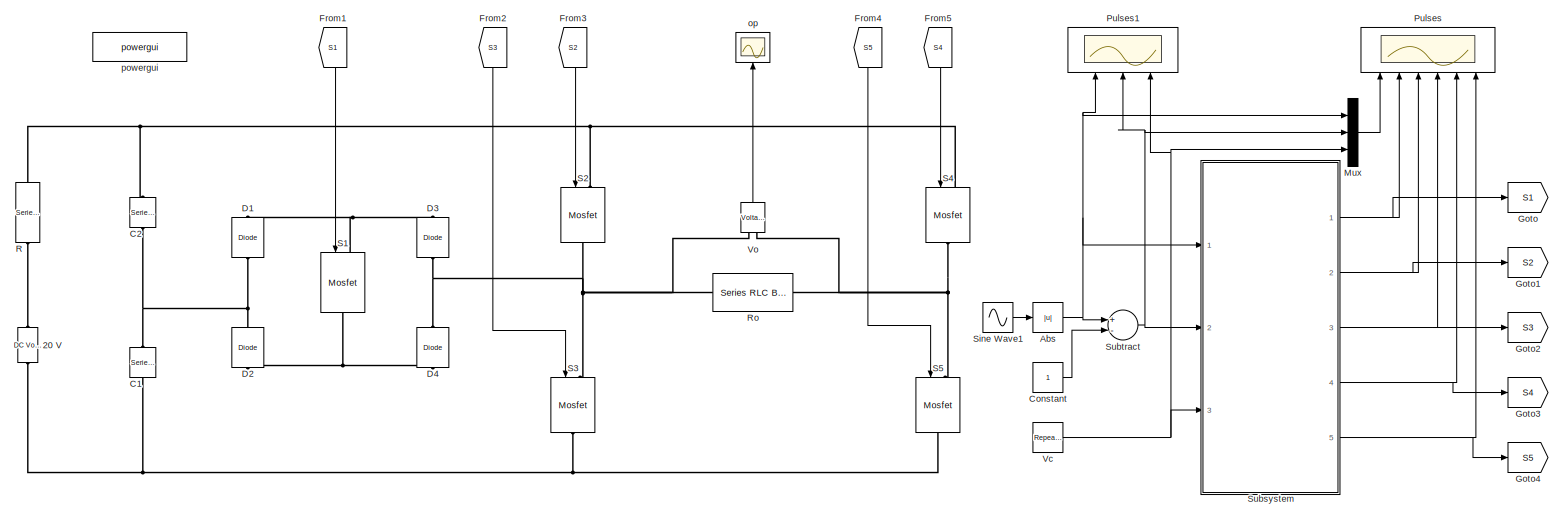
[diagram: root canvas - part 1/1, most of the canvas]
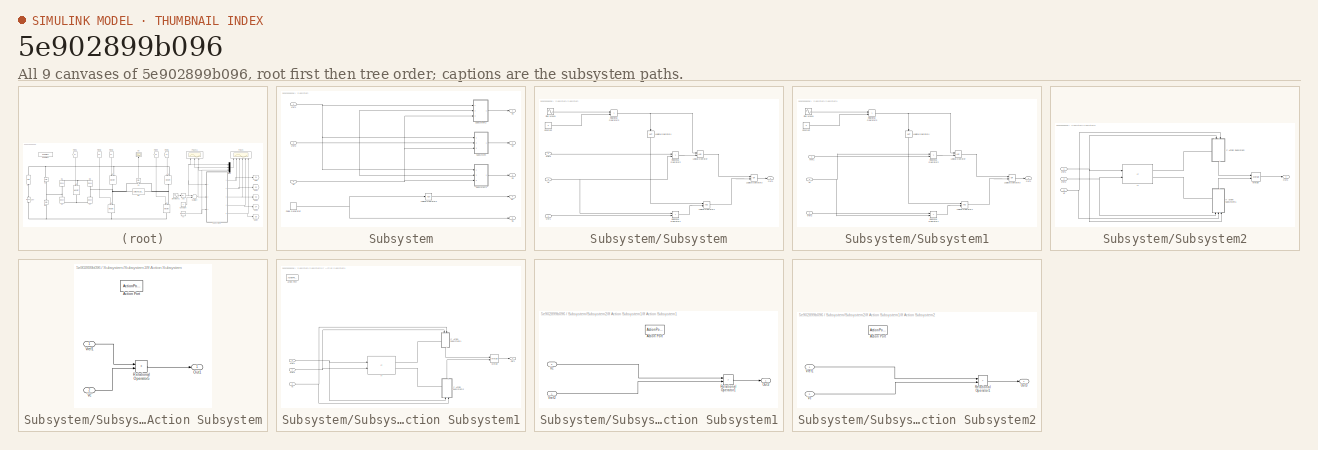
[diagram: thumbnail index - all 9 canvases of the model, root first then tree order]
MODEL slx_5e902899b096
KIND model
CONFIG AbsTol = auto
CONFIG EnableMultiTasking = off
CONFIG FixedStep = 1e-6
CONFIG MaxStep = 1e-4
CONFIG MinStep = auto
CONFIG RelTol = 1e-3
CONFIG SampleTimeConstraint = Unconstrained
CONFIG Solver = ode23tb
CONFIG SolverName = ode23tb
CONFIG StartTime = 0.0
CONFIG StopTime = .2
BLOCK [Reference] 20 V  REF=powerlib/Electrical
Sources/DC Voltage Source
  Ports = [0, 0, 0, 0, 0, 1, 1]
  SourceBlock = powerlib/Electrical\nSources/DC Voltage Source
  SourceProductBaseCode = PS
  SourceProductName = Simscape Power Systems
  SourceType = DC Voltage Source
BLOCK [Abs] Abs
  SaturateOnIntegerOverflow = off
BLOCK [Reference] C1  REF=powerlib/Elements/Series RLC Branch
  Ports = [0, 0, 0, 0, 0, 1, 1]
  SourceBlock = powerlib/Elements/Series RLC Branch
  SourceProductBaseCode = PS
  SourceProductName = Simscape Power Systems
  SourceType = Series RLC Branch
BLOCK [Reference] C2  REF=powerlib/Elements/Series RLC Branch
  Ports = [0, 0, 0, 0, 0, 1, 1]
  SourceBlock = powerlib/Elements/Series RLC Branch
  SourceProductBaseCode = PS
  SourceProductName = Simscape Power Systems
  SourceType = Series RLC Branch
BLOCK [Constant] Constant
BLOCK [Reference] D1  REF=powerlib/Power
Electronics/Diode
  Ports = [0, 0, 0, 0, 0, 1, 1]
  SourceBlock = powerlib/Power\nElectronics/Diode
  SourceProductBaseCode = PS
  SourceProductName = Simscape Power Systems
  SourceType = Diode
BLOCK [Reference] D2  REF=powerlib/Power
Electronics/Diode
  Ports = [0, 0, 0, 0, 0, 1, 1]
  SourceBlock = powerlib/Power\nElectronics/Diode
  SourceProductBaseCode = PS
  SourceProductName = Simscape Power Systems
  SourceType = Diode
BLOCK [Reference] D3  REF=powerlib/Power
Electronics/Diode
  Ports = [0, 0, 0, 0, 0, 1, 1]
  SourceBlock = powerlib/Power\nElectronics/Diode
  SourceProductBaseCode = PS
  SourceProductName = Simscape Power Systems
  SourceType = Diode
BLOCK [Reference] D4  REF=powerlib/Power
Electronics/Diode
  Ports = [0, 0, 0, 0, 0, 1, 1]
  SourceBlock = powerlib/Power\nElectronics/Diode
  SourceProductBaseCode = PS
  SourceProductName = Simscape Power Systems
  SourceType = Diode
BLOCK [From] From1
  GotoTag = S1
BLOCK [From] From2
  GotoTag = S3
BLOCK [From] From3
  GotoTag = S2
BLOCK [From] From4
  GotoTag = S5
BLOCK [From] From5
  GotoTag = S4
BLOCK [Goto] Goto
  GotoTag = S1
BLOCK [Goto] Goto1
  GotoTag = S2
BLOCK [Goto] Goto2
  GotoTag = S3
BLOCK [Goto] Goto3
  GotoTag = S4
BLOCK [Goto] Goto4
  GotoTag = S5
BLOCK [Mux] Mux
  DisplayOption = bar
  Inputs = 3
  Ports = [3, 1]
BLOCK [Scope] Pulses
  NumInputPorts = 6
  Ports = [6]
  ScopeSpecificationString = Simulink.scopes.TimeScopeBlockCfg('CurrentConfiguration', extmgr.ConfigurationSet(extmgr.Configuration('Core','General UI',true,'FigureColor',[0.501960784313725 0.501960784313725 0.501960784313725]),extmgr.Configuration('Core','Source UI',true),extmgr.Configuration('Sources','WiredSimulink',true,'DataLoggingSaveFormat','StructureWithTime','DataLoggingDecimation','1','DataLoggingDecimateData',true)...<+6638ch>
BLOCK [Scope] Pulses1
  NumInputPorts = 3
  Ports = [3]
  ScopeSpecificationString = Simulink.scopes.TimeScopeBlockCfg('CurrentConfiguration', extmgr.ConfigurationSet(extmgr.Configuration('Core','General UI',true,'FigureColor',[0.501960784313725 0.501960784313725 0.501960784313725]),extmgr.Configuration('Core','Source UI',true),extmgr.Configuration('Sources','WiredSimulink',true,'DataLoggingSaveFormat','StructureWithTime','DataLoggingDecimation','1','DataLoggingDecimateData',true,...<+2163ch>
BLOCK [Reference] R  REF=powerlib/Elements/Series RLC Branch
  Ports = [0, 0, 0, 0, 0, 1, 1]
  SourceBlock = powerlib/Elements/Series RLC Branch
  SourceProductBaseCode = PS
  SourceProductName = Simscape Power Systems
  SourceType = Series RLC Branch
BLOCK [Reference] Ro  REF=powerlib/Elements/Series RLC Branch
  Ports = [0, 0, 0, 0, 0, 1, 1]
  SourceBlock = powerlib/Elements/Series RLC Branch
  SourceProductBaseCode = PS
  SourceProductName = Simscape Power Systems
  SourceType = Series RLC Branch
BLOCK [Reference] S1  REF=powerlib/Power
Electronics/Mosfet
  Ports = [1, 0, 0, 0, 0, 1, 1]
  SourceBlock = powerlib/Power\nElectronics/Mosfet
  SourceProductBaseCode = PS
  SourceProductName = Simscape Power Systems
  SourceType = Mosfet
BLOCK [Reference] S2  REF=powerlib/Power
Electronics/Mosfet
  Ports = [1, 0, 0, 0, 0, 1, 1]
  SourceBlock = powerlib/Power\nElectronics/Mosfet
  SourceProductBaseCode = PS
  SourceProductName = Simscape Power Systems
  SourceType = Mosfet
BLOCK [Reference] S3  REF=powerlib/Power
Electronics/Mosfet
  Ports = [1, 0, 0, 0, 0, 1, 1]
  SourceBlock = powerlib/Power\nElectronics/Mosfet
  SourceProductBaseCode = PS
  SourceProductName = Simscape Power Systems
  SourceType = Mosfet
BLOCK [Reference] S4  REF=powerlib/Power
Electronics/Mosfet
  Ports = [1, 0, 0, 0, 0, 1, 1]
  SourceBlock = powerlib/Power\nElectronics/Mosfet
  SourceProductBaseCode = PS
  SourceProductName = Simscape Power Systems
  SourceType = Mosfet
BLOCK [Reference] S5  REF=powerlib/Power
Electronics/Mosfet
  Ports = [1, 0, 0, 0, 0, 1, 1]
  SourceBlock = powerlib/Power\nElectronics/Mosfet
  SourceProductBaseCode = PS
  SourceProductName = Simscape Power Systems
  SourceType = Mosfet
BLOCK [Sin] Sine Wave1
  Amplitude = 2.5
  Frequency = 2*pi*50
  Ports = [0, 1]
  SampleTime = 0
  VectorParams1D = off
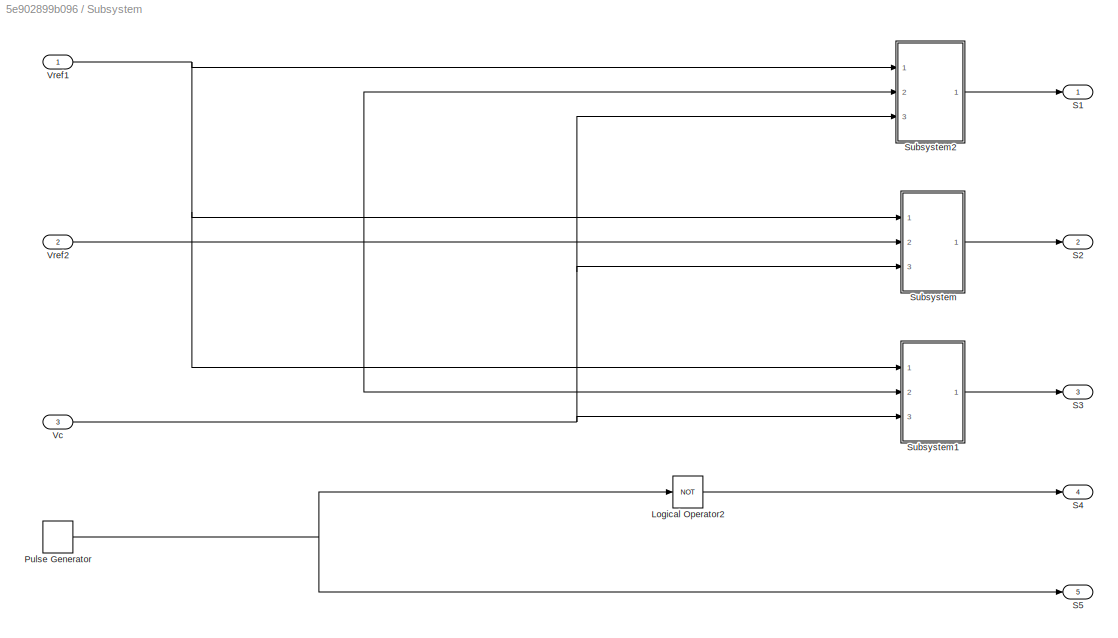
BLOCK [SubSystem] Subsystem
  Ports = [3, 5]
  RequestExecContextInheritance = off
  Variant = off
BLOCK [Logic] Subsystem/Logical Operator2
  AllPortsSameDT = off
  Operator = NOT
  OutDataTypeStr = boolean
  Ports = [1, 1]
BLOCK [DiscretePulseGenerator] Subsystem/Pulse Generator
  Period = .02
  Ports = [0, 1]
  PulseType = Time based
  PulseWidth = 50
BLOCK [Outport] Subsystem/S1
  IconDisplay = Port number
BLOCK [Outport] Subsystem/S2
  IconDisplay = Port number
  Port = 2
BLOCK [Outport] Subsystem/S3
  IconDisplay = Port number
  Port = 3
BLOCK [Outport] Subsystem/S4
  IconDisplay = Port number
  Port = 4
BLOCK [Outport] Subsystem/S5
  IconDisplay = Port number
  Port = 5
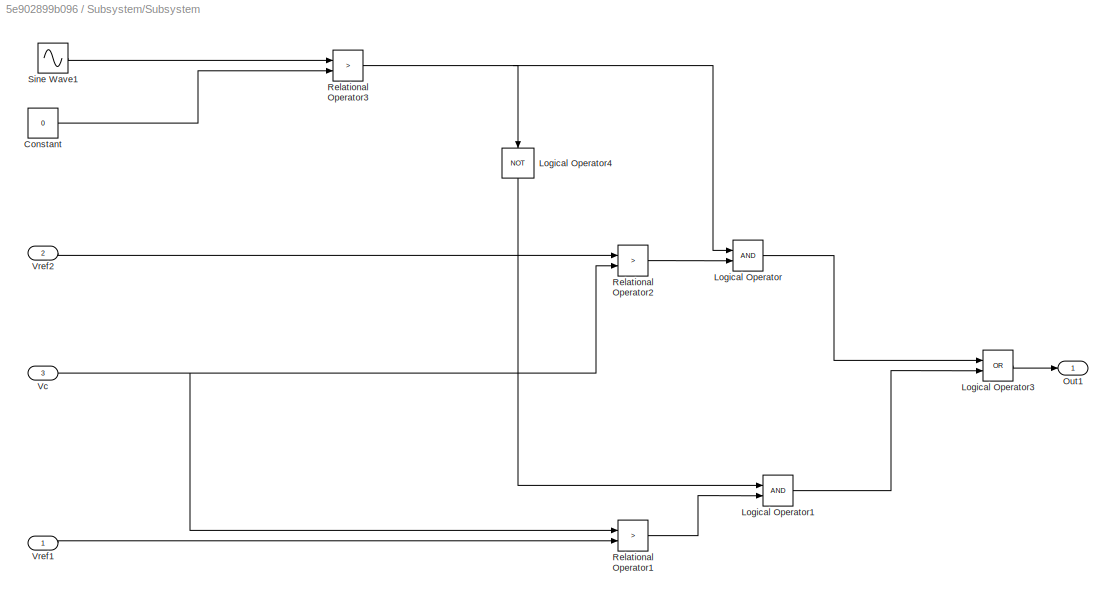
BLOCK [SubSystem] Subsystem/Subsystem
  Ports = [3, 1]
  RequestExecContextInheritance = off
  Variant = off
BLOCK [Constant] Subsystem/Subsystem/Constant
  Value = 0
BLOCK [Logic] Subsystem/Subsystem/Logical Operator
  AllPortsSameDT = off
  OutDataTypeStr = boolean
  Ports = [2, 1]
BLOCK [Logic] Subsystem/Subsystem/Logical Operator1
  AllPortsSameDT = off
  OutDataTypeStr = boolean
  Ports = [2, 1]
BLOCK [Logic] Subsystem/Subsystem/Logical Operator3
  AllPortsSameDT = off
  Operator = OR
  OutDataTypeStr = boolean
  Ports = [2, 1]
BLOCK [Logic] Subsystem/Subsystem/Logical Operator4
  AllPortsSameDT = off
  Operator = NOT
  OutDataTypeStr = boolean
  Ports = [1, 1]
BLOCK [Outport] Subsystem/Subsystem/Out1
  IconDisplay = Port number
BLOCK [RelationalOperator] Subsystem/Subsystem/Relational Operator1
  InputSameDT = off
  Operator = >
  OutDataTypeStr = boolean
  Ports = [2, 1]
BLOCK [RelationalOperator] Subsystem/Subsystem/Relational Operator2
  InputSameDT = off
  Operator = >
  OutDataTypeStr = boolean
  Ports = [2, 1]
BLOCK [RelationalOperator] Subsystem/Subsystem/Relational Operator3
  InputSameDT = off
  Operator = >
  OutDataTypeStr = boolean
  Ports = [2, 1]
BLOCK [Sin] Subsystem/Subsystem/Sine Wave1
  Amplitude = 100
  Frequency = 2*pi*50
  Ports = [0, 1]
  SampleTime = 0
  VectorParams1D = off
BLOCK [Inport] Subsystem/Subsystem/Vc
  IconDisplay = Port number
  Port = 3
BLOCK [Inport] Subsystem/Subsystem/Vref1
  IconDisplay = Port number
BLOCK [Inport] Subsystem/Subsystem/Vref2
  IconDisplay = Port number
  Port = 2
BLOCK [SubSystem] Subsystem/Subsystem1
  Ports = [3, 1]
  RequestExecContextInheritance = off
  Variant = off
BLOCK [Constant] Subsystem/Subsystem1/Constant
  Value = 0
BLOCK [Logic] Subsystem/Subsystem1/Logical Operator
  AllPortsSameDT = off
  OutDataTypeStr = boolean
  Ports = [2, 1]
BLOCK [Logic] Subsystem/Subsystem1/Logical Operator1
  AllPortsSameDT = off
  OutDataTypeStr = boolean
  Ports = [2, 1]
BLOCK [Logic] Subsystem/Subsystem1/Logical Operator3
  AllPortsSameDT = off
  Operator = OR
  OutDataTypeStr = boolean
  Ports = [2, 1]
BLOCK [Logic] Subsystem/Subsystem1/Logical Operator4
  AllPortsSameDT = off
  Operator = NOT
  OutDataTypeStr = boolean
  Ports = [1, 1]
BLOCK [Outport] Subsystem/Subsystem1/Out1
  IconDisplay = Port number
BLOCK [RelationalOperator] Subsystem/Subsystem1/Relational Operator1
  InputSameDT = off
  Operator = >
  OutDataTypeStr = boolean
  Ports = [2, 1]
BLOCK [RelationalOperator] Subsystem/Subsystem1/Relational Operator2
  InputSameDT = off
  Operator = >
  OutDataTypeStr = boolean
  Ports = [2, 1]
BLOCK [RelationalOperator] Subsystem/Subsystem1/Relational Operator3
  InputSameDT = off
  Operator = >
  OutDataTypeStr = boolean
  Ports = [2, 1]
BLOCK [Sin] Subsystem/Subsystem1/Sine Wave1
  Amplitude = 100
  Frequency = 2*pi*50
  Ports = [0, 1]
  SampleTime = 0
  VectorParams1D = off
BLOCK [Inport] Subsystem/Subsystem1/Vc
  IconDisplay = Port number
  Port = 3
BLOCK [Inport] Subsystem/Subsystem1/Vref1
  IconDisplay = Port number
BLOCK [Inport] Subsystem/Subsystem1/Vref2
  IconDisplay = Port number
  Port = 2
BLOCK [SubSystem] Subsystem/Subsystem2
  Ports = [3, 1]
  RequestExecContextInheritance = off
  Variant = off
BLOCK [If] Subsystem/Subsystem2/If
  IfExpression = u1 < 75 & u2 < 0
  NumInputs = 2
  Ports = [2, 2]
BLOCK [SubSystem] Subsystem/Subsystem2/If Action Subsystem
  Ports = [2, 1, 0, 0, 0, 0, 0, 1]
  RequestExecContextInheritance = off
  TreatAsAtomicUnit = on
  Variant = off
BLOCK [ActionPort] Subsystem/Subsystem2/If Action Subsystem/Action Port
  ActionType = then
BLOCK [Outport] Subsystem/Subsystem2/If Action Subsystem/Out1
  IconDisplay = Port number
BLOCK [RelationalOperator] Subsystem/Subsystem2/If Action Subsystem/Relational Operator5
  InputSameDT = off
  Operator = >
  OutDataTypeStr = boolean
  Ports = [2, 1]
BLOCK [Inport] Subsystem/Subsystem2/If Action Subsystem/Vc
  IconDisplay = Port number
  Port = 2
BLOCK [Inport] Subsystem/Subsystem2/If Action Subsystem/Vref1
  IconDisplay = Port number
BLOCK [SubSystem] Subsystem/Subsystem2/If Action Subsystem1
  Ports = [3, 1, 0, 0, 0, 0, 0, 1]
  RequestExecContextInheritance = off
  TreatAsAtomicUnit = on
  Variant = off
BLOCK [ActionPort] Subsystem/Subsystem2/If Action Subsystem1/Action Port
  ActionType = else
BLOCK [If] Subsystem/Subsystem2/If Action Subsystem1/If
  IfExpression = u2 > 0
  NumInputs = 2
  Ports = [2, 2]
BLOCK [SubSystem] Subsystem/Subsystem2/If Action Subsystem1/If Action Subsystem1
  Ports = [2, 1, 0, 0, 0, 0, 0, 1]
  RequestExecContextInheritance = off
  TreatAsAtomicUnit = on
  Variant = off
BLOCK [ActionPort] Subsystem/Subsystem2/If Action Subsystem1/If Action Subsystem1/Action Port
  ActionType = then
BLOCK [Outport] Subsystem/Subsystem2/If Action Subsystem1/If Action Subsystem1/Out3
  IconDisplay = Port number
BLOCK [RelationalOperator] Subsystem/Subsystem2/If Action Subsystem1/If Action Subsystem1/Relational Operator1
  InputSameDT = off
  Operator = >
  OutDataTypeStr = boolean
  Ports = [2, 1]
BLOCK [Inport] Subsystem/Subsystem2/If Action Subsystem1/If Action Subsystem1/Vc
  IconDisplay = Port number
  Port = 2
BLOCK [Inport] Subsystem/Subsystem2/If Action Subsystem1/If Action Subsystem1/Vref2
  IconDisplay = Port number
BLOCK [SubSystem] Subsystem/Subsystem2/If Action Subsystem1/If Action Subsystem2
  Ports = [2, 1, 0, 0, 0, 0, 0, 1]
  RequestExecContextInheritance = off
  TreatAsAtomicUnit = on
  Variant = off
BLOCK [ActionPort] Subsystem/Subsystem2/If Action Subsystem1/If Action Subsystem2/Action Port
  ActionType = else
BLOCK [Outport] Subsystem/Subsystem2/If Action Subsystem1/If Action Subsystem2/Out3
  IconDisplay = Port number
BLOCK [RelationalOperator] Subsystem/Subsystem2/If Action Subsystem1/If Action Subsystem2/Relational Operator1
  InputSameDT = off
  Operator = >
  OutDataTypeStr = boolean
  Ports = [2, 1]
BLOCK [Inport] Subsystem/Subsystem2/If Action Subsystem1/If Action Subsystem2/Vc
  IconDisplay = Port number
  Port = 2
BLOCK [Inport] Subsystem/Subsystem2/If Action Subsystem1/If Action Subsystem2/Vref1
  IconDisplay = Port number
BLOCK [Merge] Subsystem/Subsystem2/If Action Subsystem1/Merge
  Ports = [2, 1]
BLOCK [Outport] Subsystem/Subsystem2/If Action Subsystem1/Out1
  IconDisplay = Port number
BLOCK [Inport] Subsystem/Subsystem2/If Action Subsystem1/Vc
  IconDisplay = Port number
  Port = 2
BLOCK [Inport] Subsystem/Subsystem2/If Action Subsystem1/Vref1
  IconDisplay = Port number
  Port = 3
BLOCK [Inport] Subsystem/Subsystem2/If Action Subsystem1/Vref2
  IconDisplay = Port number
BLOCK [Merge] Subsystem/Subsystem2/Merge
  Ports = [2, 1]
BLOCK [Outport] Subsystem/Subsystem2/Out1
  IconDisplay = Port number
BLOCK [Inport] Subsystem/Subsystem2/Vc
  IconDisplay = Port number
  Port = 3
BLOCK [Inport] Subsystem/Subsystem2/Vref1
  IconDisplay = Port number
BLOCK [Inport] Subsystem/Subsystem2/Vref2
  IconDisplay = Port number
  Port = 2
BLOCK [Inport] Subsystem/Vc
  IconDisplay = Port number
  Port = 3
BLOCK [Inport] Subsystem/Vref1
  IconDisplay = Port number
BLOCK [Inport] Subsystem/Vref2
  IconDisplay = Port number
  Port = 2
BLOCK [Sum] Subtract
  InputSameDT = off
  Inputs = +-
  OutDataTypeStr = Inherit: Inherit via internal rule
  Ports = [2, 1]
  SaturateOnIntegerOverflow = off
BLOCK [Reference] Vc  REF=simulink/Sources/Repeating
Sequence
  Ports = [0, 1]
  SourceBlock = simulink/Sources/Repeating\nSequence
  SourceProductBaseCode = SL
  SourceProductName = Simulink
  SourceType = Repeating table
BLOCK [Reference] Vo  REF=powerlib/Measurements/Voltage Measurement
  Ports = [0, 1, 0, 0, 0, 2]
  SourceBlock = powerlib/Measurements/Voltage Measurement
  SourceProductBaseCode = PS
  SourceProductName = Simscape Power Systems
  SourceType = Voltage Measurement
BLOCK [Scope] op
  NumInputPorts = 1
  Ports = [1]
  ScopeSpecificationString = Simulink.scopes.TimeScopeBlockCfg('CurrentConfiguration', extmgr.ConfigurationSet(extmgr.Configuration('Core','General UI',true,'FigureColor',[1 1 1]),extmgr.Configuration('Core','Source UI',true),extmgr.Configuration('Sources','WiredSimulink',true,'DataLogging',true,'DataLoggingVariableName','outputVoltage','DataLoggingDecimation','1','DataLoggingDecimateData',true),extmgr.Configuration('Visuals'...<+2815ch>
BLOCK [Reference] powergui  REF=powerlib/powergui
  Ports = []
  Priority = 1
  SourceBlock = powerlib/powergui
  SourceProductBaseCode = PS
  SourceProductName = Simscape Power Systems
  SourceType = PSB option menu block
NET Abs:1 -> Mux:1, Pulses1:1, Subsystem:1, Subtract:1
LINE Constant:1 -> Subtract:2
LINE From1:1 -> S1:1
LINE From2:1 -> S3:1
LINE From3:1 -> S2:1
LINE From4:1 -> S5:1
LINE From5:1 -> S4:1
LINE Mux:1 -> Pulses:1
LINE Sine Wave1:1 -> Abs:1
LINE Subsystem/Logical Operator2:1 -> Subsystem/S4:1
NET Subsystem/Pulse Generator:1 -> Subsystem/Logical Operator2:1, Subsystem/S5:1
LINE Subsystem/Subsystem/Constant:1 -> Subsystem/Subsystem/Relational Operator3:2
LINE Subsystem/Subsystem/Logical Operator1:1 -> Subsystem/Subsystem/Logical Operator3:2
LINE Subsystem/Subsystem/Logical Operator3:1 -> Subsystem/Subsystem/Out1:1
LINE Subsystem/Subsystem/Logical Operator4:1 -> Subsystem/Subsystem/Logical Operator1:1
LINE Subsystem/Subsystem/Logical Operator:1 -> Subsystem/Subsystem/Logical Operator3:1
LINE Subsystem/Subsystem/Relational Operator1:1 -> Subsystem/Subsystem/Logical Operator1:2
LINE Subsystem/Subsystem/Relational Operator2:1 -> Subsystem/Subsystem/Logical Operator:2
NET Subsystem/Subsystem/Relational Operator3:1 -> Subsystem/Subsystem/Logical Operator4:1, Subsystem/Subsystem/Logical Operator:1
LINE Subsystem/Subsystem/Sine Wave1:1 -> Subsystem/Subsystem/Relational Operator3:1
NET Subsystem/Subsystem/Vc:1 -> Subsystem/Subsystem/Relational Operator1:1, Subsystem/Subsystem/Relational Operator2:2
LINE Subsystem/Subsystem/Vref1:1 -> Subsystem/Subsystem/Relational Operator1:2
LINE Subsystem/Subsystem/Vref2:1 -> Subsystem/Subsystem/Relational Operator2:1
LINE Subsystem/Subsystem1/Constant:1 -> Subsystem/Subsystem1/Relational Operator3:2
LINE Subsystem/Subsystem1/Logical Operator1:1 -> Subsystem/Subsystem1/Logical Operator3:2
LINE Subsystem/Subsystem1/Logical Operator3:1 -> Subsystem/Subsystem1/Out1:1
LINE Subsystem/Subsystem1/Logical Operator4:1 -> Subsystem/Subsystem1/Logical Operator1:1
LINE Subsystem/Subsystem1/Logical Operator:1 -> Subsystem/Subsystem1/Logical Operator3:1
LINE Subsystem/Subsystem1/Relational Operator1:1 -> Subsystem/Subsystem1/Logical Operator1:2
LINE Subsystem/Subsystem1/Relational Operator2:1 -> Subsystem/Subsystem1/Logical Operator:2
NET Subsystem/Subsystem1/Relational Operator3:1 -> Subsystem/Subsystem1/Logical Operator4:1, Subsystem/Subsystem1/Logical Operator:1
LINE Subsystem/Subsystem1/Sine Wave1:1 -> Subsystem/Subsystem1/Relational Operator3:1
NET Subsystem/Subsystem1/Vc:1 -> Subsystem/Subsystem1/Relational Operator1:2, Subsystem/Subsystem1/Relational Operator2:1
LINE Subsystem/Subsystem1/Vref1:1 -> Subsystem/Subsystem1/Relational Operator2:2
LINE Subsystem/Subsystem1/Vref2:1 -> Subsystem/Subsystem1/Relational Operator1:1
LINE Subsystem/Subsystem1:1 -> Subsystem/S3:1
LINE Subsystem/Subsystem2/If Action Subsystem/Relational Operator5:1 -> Subsystem/Subsystem2/If Action Subsystem/Out1:1
LINE Subsystem/Subsystem2/If Action Subsystem/Vc:1 -> Subsystem/Subsystem2/If Action Subsystem/Relational Operator5:2
LINE Subsystem/Subsystem2/If Action Subsystem/Vref1:1 -> Subsystem/Subsystem2/If Action Subsystem/Relational Operator5:1
LINE Subsystem/Subsystem2/If Action Subsystem1/If Action Subsystem1/Relational Operator1:1 -> Subsystem/Subsystem2/If Action Subsystem1/If Action Subsystem1/Out3:1
LINE Subsystem/Subsystem2/If Action Subsystem1/If Action Subsystem1/Vc:1 -> Subsystem/Subsystem2/If Action Subsystem1/If Action Subsystem1/Relational Operator1:1
LINE Subsystem/Subsystem2/If Action Subsystem1/If Action Subsystem1/Vref2:1 -> Subsystem/Subsystem2/If Action Subsystem1/If Action Subsystem1/Relational Operator1:2
LINE Subsystem/Subsystem2/If Action Subsystem1/If Action Subsystem1:1 -> Subsystem/Subsystem2/If Action Subsystem1/Merge:1
LINE Subsystem/Subsystem2/If Action Subsystem1/If Action Subsystem2/Relational Operator1:1 -> Subsystem/Subsystem2/If Action Subsystem1/If Action Subsystem2/Out3:1
LINE Subsystem/Subsystem2/If Action Subsystem1/If Action Subsystem2/Vc:1 -> Subsystem/Subsystem2/If Action Subsystem1/If Action Subsystem2/Relational Operator1:2
LINE Subsystem/Subsystem2/If Action Subsystem1/If Action Subsystem2/Vref1:1 -> Subsystem/Subsystem2/If Action Subsystem1/If Action Subsystem2/Relational Operator1:1
LINE Subsystem/Subsystem2/If Action Subsystem1/If Action Subsystem2:1 -> Subsystem/Subsystem2/If Action Subsystem1/Merge:2
LINE Subsystem/Subsystem2/If Action Subsystem1/If:1 -> Subsystem/Subsystem2/If Action Subsystem1/If Action Subsystem1:ifaction
LINE Subsystem/Subsystem2/If Action Subsystem1/If:2 -> Subsystem/Subsystem2/If Action Subsystem1/If Action Subsystem2:ifaction
LINE Subsystem/Subsystem2/If Action Subsystem1/Merge:1 -> Subsystem/Subsystem2/If Action Subsystem1/Out1:1
NET Subsystem/Subsystem2/If Action Subsystem1/Vc:1 -> Subsystem/Subsystem2/If Action Subsystem1/If Action Subsystem1:2, Subsystem/Subsystem2/If Action Subsystem1/If Action Subsystem2:2
NET Subsystem/Subsystem2/If Action Subsystem1/Vref1:1 -> Subsystem/Subsystem2/If Action Subsystem1/If Action Subsystem2:1, Subsystem/Subsystem2/If Action Subsystem1/If:1
NET Subsystem/Subsystem2/If Action Subsystem1/Vref2:1 -> Subsystem/Subsystem2/If Action Subsystem1/If Action Subsystem1:1, Subsystem/Subsystem2/If Action Subsystem1/If:2
LINE Subsystem/Subsystem2/If Action Subsystem1:1 -> Subsystem/Subsystem2/Merge:2
LINE Subsystem/Subsystem2/If Action Subsystem:1 -> Subsystem/Subsystem2/Merge:1
LINE Subsystem/Subsystem2/If:1 -> Subsystem/Subsystem2/If Action Subsystem:ifaction
LINE Subsystem/Subsystem2/If:2 -> Subsystem/Subsystem2/If Action Subsystem1:ifaction
LINE Subsystem/Subsystem2/Merge:1 -> Subsystem/Subsystem2/Out1:1
NET Subsystem/Subsystem2/Vc:1 -> Subsystem/Subsystem2/If Action Subsystem1:2, Subsystem/Subsystem2/If Action Subsystem:2
NET Subsystem/Subsystem2/Vref1:1 -> Subsystem/Subsystem2/If Action Subsystem1:3, Subsystem/Subsystem2/If Action Subsystem:1, Subsystem/Subsystem2/If:1
NET Subsystem/Subsystem2/Vref2:1 -> Subsystem/Subsystem2/If Action Subsystem1:1, Subsystem/Subsystem2/If:2
LINE Subsystem/Subsystem2:1 -> Subsystem/S1:1
LINE Subsystem/Subsystem:1 -> Subsystem/S2:1
NET Subsystem/Vc:1 -> Subsystem/Subsystem1:3, Subsystem/Subsystem2:3, Subsystem/Subsystem:3
NET Subsystem/Vref1:1 -> Subsystem/Subsystem1:1, Subsystem/Subsystem2:1, Subsystem/Subsystem:1
NET Subsystem/Vref2:1 -> Subsystem/Subsystem1:2, Subsystem/Subsystem2:2, Subsystem/Subsystem:2
NET Subsystem:1 -> Goto:1, Pulses:2
NET Subsystem:2 -> Goto1:1, Pulses:3
NET Subsystem:3 -> Goto2:1, Pulses:4
NET Subsystem:4 -> Goto3:1, Pulses:5
NET Subsystem:5 -> Goto4:1, Pulses:6
NET Subtract:1 -> Mux:2, Pulses1:2, Subsystem:2
NET Vc:1 -> Mux:3, Pulses1:3, Subsystem:3
LINE Vo:1 -> op:1
PNET net1: 20 V:LConn1 -- C1:RConn1 -- S3:RConn1 -- S5:RConn1
PLINE 20 V:RConn1 -- R:LConn1
PNET net2: C1:LConn1 -- C2:RConn1 -- D1:LConn1 -- D2:RConn1
PNET net3: C2:LConn1 -- R:RConn1 -- S2:LConn1 -- S4:LConn1
PNET net4: D1:RConn1 -- D3:RConn1 -- S1:LConn1
PNET net5: D2:LConn1 -- D4:LConn1 -- S1:RConn1
PNET net6: D3:LConn1 -- D4:RConn1 -- Ro:LConn1 -- S2:RConn1 -- S3:LConn1 -- Vo:LConn1
PNET net7: Ro:RConn1 -- S4:RConn1 -- S5:LConn1 -- Vo:LConn2
note: NET lines group one-source signal fan-out (src -> all destinations, sorted); 1:1 wires keep LINE; PNET lines group multi-terminal physical nets as a canonical sorted terminal list (undirected conserving connections); 2-terminal nets keep the pairwise PLINE form
